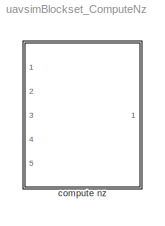
MODEL uavsimBlockset_ComputeNz
KIND library
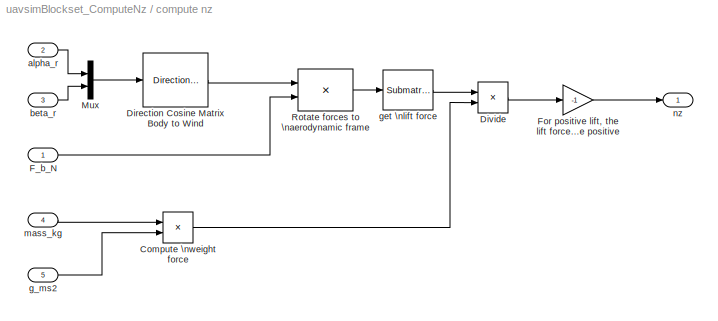
BLOCK [SubSystem] compute nz
  FunctionWithSeparateData = off
  MaskHideContents = off
  MinAlgLoopOccurrences = off
  Opaque = off
  Ports = [5, 1]
  PropExecContextOutsideSubsystem = off
  RTWSystemCode = Auto
  RequestExecContextInheritance = off
  SID = 1961
BLOCK [Product] compute nz/Compute \nweight force
  InputSameDT = off
  OutDataTypeStr = Inherit: Inherit via internal rule
  Ports = [2, 1]
  SID = 1967
  SaturateOnIntegerOverflow = off
BLOCK [Reference] compute nz/Direction Cosine Matrix Body to Wind  REF=aerolibtransform2/Direction Cosine Matrix\nBody to Wind
  Ports = [1, 1]
  SID = 1968
  SourceBlock = aerolibtransform2/Direction Cosine Matrix\nBody to Wind
  SourceType = DCM Body to Wind
BLOCK [Product] compute nz/Divide
  InputSameDT = off
  Inputs = */
  OutDataTypeStr = Inherit: Inherit via internal rule
  Ports = [2, 1]
  RndMeth = Floor
  SID = 1969
  SaturateOnIntegerOverflow = off
BLOCK [Inport] compute nz/F_b_N
  IconDisplay = Port number
  SID = 1962
BLOCK [Gain] compute nz/For positive lift, the lift force\nis negative due to the body frame's\nz axis pointing down (in cruise flight), the \nload factor nz should however be positive
  Gain = -1
  OutDataTypeStr = Inherit: Inherit via internal rule
  ParamDataTypeStr = Inherit: Inherit via internal rule
  SID = 1995
  SaturateOnIntegerOverflow = off
BLOCK [Mux] compute nz/Mux
  DisplayOption = bar
  Inputs = 2
  Ports = [2, 1]
  SID = 1970
BLOCK [Product] compute nz/Rotate forces to \naerodynamic frame
  InputSameDT = off
  Multiplication = Matrix(*)
  OutDataTypeStr = Inherit: Inherit via internal rule
  Ports = [2, 1]
  RndMeth = Floor
  SID = 1971
  SaturateOnIntegerOverflow = off
BLOCK [Inport] compute nz/alpha_r
  IconDisplay = Port number
  Port = 2
  SID = 1963
BLOCK [Inport] compute nz/beta_r
  IconDisplay = Port number
  Port = 3
  SID = 1964
BLOCK [Inport] compute nz/g_ms2
  IconDisplay = Port number
  Port = 5
  SID = 1966
BLOCK [Reference] compute nz/get \nlift force  REF=dspmtrx3/Submatrix
  ColEndIndex = 1
  ColEndMode = Last
  ColSpan = Range of columns
  ColStartIndex = 1
  ColStartMode = First
  Ports = [1, 1]
  RowEndIndex = 3
  RowEndMode = Index
  RowSpan = Range of rows
  RowStartIndex = 3
  RowStartMode = Index
  SID = 1972
  SourceBlock = dspmtrx3/Submatrix
  SourceType = Submatrix
BLOCK [Inport] compute nz/mass_kg
  IconDisplay = Port number
  Port = 4
  SID = 1965
BLOCK [Outport] compute nz/nz
  IconDisplay = Port number
  SID = 1973
LINE compute nz/Compute \nweight force:1 -> compute nz/Divide:2
LINE compute nz/Direction Cosine Matrix Body to Wind:1 -> compute nz/Rotate forces to \naerodynamic frame:1
LINE compute nz/Divide:1 -> compute nz/For positive lift, the lift force\nis negative due to the body frame's\nz axis pointing down (in cruise flight), the \nload factor nz should however be positive:1
LINE compute nz/F_b_N:1 -> compute nz/Rotate forces to \naerodynamic frame:2
LINE compute nz/For positive lift, the lift force\nis negative due to the body frame's\nz axis pointing down (in cruise flight), the \nload factor nz should however be positive:1 -> compute nz/nz:1
LINE compute nz/Mux:1 -> compute nz/Direction Cosine Matrix Body to Wind:1
LINE compute nz/Rotate forces to \naerodynamic frame:1 -> compute nz/get \nlift force:1
LINE compute nz/alpha_r:1 -> compute nz/Mux:1
LINE compute nz/beta_r:1 -> compute nz/Mux:2
LINE compute nz/g_ms2:1 -> compute nz/Compute \nweight force:2
LINE compute nz/get \nlift force:1 -> compute nz/Divide:1
LINE compute nz/mass_kg:1 -> compute nz/Compute \nweight force:1
